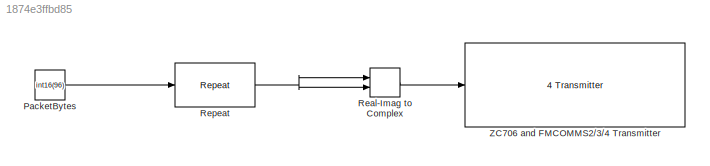
MODEL slx_1874e3ffbd85
KIND model
CONFIG AbsTol = auto
CONFIG EnableMultiTasking = off
CONFIG FixedStep = auto
CONFIG MaxStep = auto
CONFIG MinStep = auto
CONFIG RelTol = 1e-3
CONFIG SampleTimeConstraint = Unconstrained
CONFIG Solver = FixedStepDiscrete
CONFIG SolverName = FixedStepDiscrete
CONFIG StartTime = 0.0
CONFIG StopTime = inf
BLOCK [Constant] PacketBytes
  SampleTime = (2^14)/1e6
  Value = int16(96)
BLOCK [RealImagToComplex] Real-Imag to Complex
  Ports = [2, 1]
BLOCK [Reference] Repeat  REF=dspsigops/Repeat
  Ports = [1, 1]
  SourceBlock = dspsigops/Repeat
  SourceProductBaseCode = DS
  SourceProductName = DSP System Toolbox
  SourceType = Repeat
  UserDataPersistent = on
BLOCK [Reference] ZC706 and FMCOMMS2//3//4 Transmitter  REF=zc706fmc234_lib/ZC706 and 
FMCOMMS2//3//4 
Transmitter
  Ports = [1, 1]
  SourceBlock = zc706fmc234_lib/ZC706 and \nFMCOMMS2//3//4 \nTransmitter
  SourceProductBaseCode = XILINXZYNQ
  SourceProductName = Communications System Toolbox Support Package for Xilinx Zynq-Based Radio
  SourceType = comm.internal.SDRTxZC706FMC234SL
LINE PacketBytes:1 -> Repeat:1
LINE Real-Imag to Complex:1 -> ZC706 and FMCOMMS2//3//4 Transmitter:1
NET Repeat:1 -> Real-Imag to Complex:1, Real-Imag to Complex:2
note: NET lines group one-source signal fan-out (src -> all destinations, sorted); 1:1 wires keep LINE
